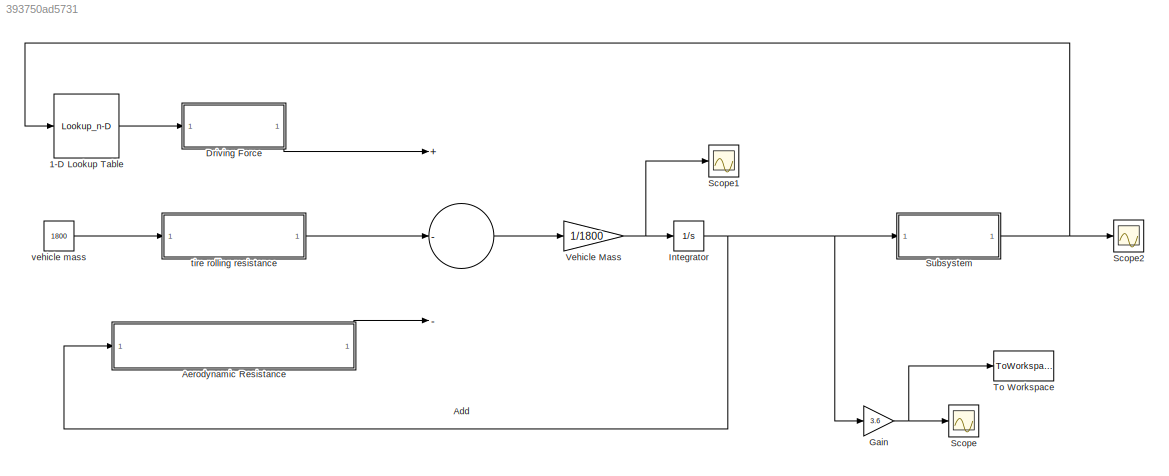
MODEL slx_393750ad5731
KIND model
CONFIG AbsTol = auto
CONFIG EnableMultiTasking = off
CONFIG FixedStep = auto
CONFIG MaxStep = auto
CONFIG MinStep = auto
CONFIG RelTol = 1e-3
CONFIG SampleTimeConstraint = Unconstrained
CONFIG Solver = VariableStepAuto
CONFIG SolverName = VariableStepAuto
CONFIG StartTime = 0.0
CONFIG StopTime = 100
BLOCK [Lookup_n-D] 1-D Lookup Table
  BreakpointsForDimension1 = EM_RPM
  InternalRulePriority = Speed
  NumberOfTableDimensions = 1
  Ports = [1, 1]
  RndMeth = Simplest
  Table = EM_torque_Nm
BLOCK [Sum] Add
  InputSameDT = off
  Inputs = +--
  OutDataTypeStr = Inherit: Inherit via internal rule
  Ports = [3, 1]
  SaturateOnIntegerOverflow = off
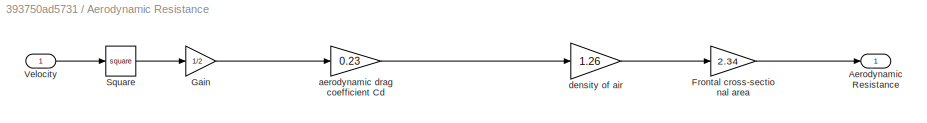
BLOCK [SubSystem] Aerodynamic Resistance 
  Ports = [1, 1]
  RequestExecContextInheritance = off
BLOCK [Outport] Aerodynamic Resistance /Aerodynamic Resistance
  IconDisplay = Port number
BLOCK [Gain] Aerodynamic Resistance /Frontal cross-sectional area
  Gain = 2.34
  OutDataTypeStr = Inherit: Inherit via internal rule
  ParamDataTypeStr = Inherit: Inherit via internal rule
  SaturateOnIntegerOverflow = off
BLOCK [Gain] Aerodynamic Resistance /Gain
  Gain = 1/2
  OutDataTypeStr = Inherit: Inherit via internal rule
  ParamDataTypeStr = Inherit: Inherit via internal rule
  SaturateOnIntegerOverflow = off
BLOCK [Math] Aerodynamic Resistance /Square
  Operator = square
  Ports = [1, 1]
BLOCK [Inport] Aerodynamic Resistance /Velocity
  IconDisplay = Port number
BLOCK [Gain] Aerodynamic Resistance /aerodynamic drag coefficient Cd
  Gain = 0.23
  OutDataTypeStr = Inherit: Inherit via internal rule
  ParamDataTypeStr = Inherit: Inherit via internal rule
  SaturateOnIntegerOverflow = off
BLOCK [Gain] Aerodynamic Resistance /density of air
  Gain = 1.26
  OutDataTypeStr = Inherit: Inherit via internal rule
  ParamDataTypeStr = Inherit: Inherit via internal rule
  SaturateOnIntegerOverflow = off
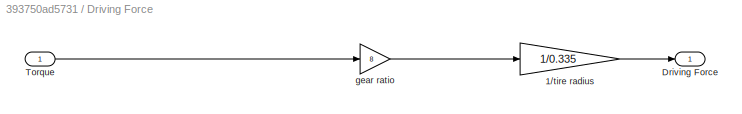
BLOCK [SubSystem] Driving Force
  Ports = [1, 1]
  RequestExecContextInheritance = off
BLOCK [Gain] Driving Force/1//tire radius
  Gain = 1/0.335
  OutDataTypeStr = Inherit: Inherit via internal rule
  ParamDataTypeStr = Inherit: Inherit via internal rule
  SaturateOnIntegerOverflow = off
BLOCK [Outport] Driving Force/Driving Force
  IconDisplay = Port number
BLOCK [Inport] Driving Force/Torque
  IconDisplay = Port number
BLOCK [Gain] Driving Force/gear ratio
  Gain = 8
  OutDataTypeStr = Inherit: Inherit via internal rule
  ParamDataTypeStr = Inherit: Inherit via internal rule
  SaturateOnIntegerOverflow = off
BLOCK [Gain] Gain
  Gain = 3.6
  OutDataTypeStr = Inherit: Inherit via internal rule
  ParamDataTypeStr = Inherit: Inherit via internal rule
  SaturateOnIntegerOverflow = off
BLOCK [Integrator] Integrator
  Ports = [1, 1]
BLOCK [Scope] Scope
  Floating = off
  NumInputPorts = 1
  Ports = [1]
  ScopeSpecificationString = Simulink.scopes.TimeScopeBlockCfg('CurrentConfiguration', extmgr.ConfigurationSet(extmgr.Configuration('Core','General UI',true),extmgr.Configuration('Core','Source UI',true),extmgr.Configuration('Sources','WiredSimulink',true,'DataLoggingVariableName','VehicleSpeed','DataLogging',true,'DataLoggingSaveFormat','StructureWithTime'),extmgr.Configuration('Visuals','Time Domain',true,'SerializedDisplay...<+1473ch>
BLOCK [Scope] Scope1
  Floating = off
  NumInputPorts = 1
  Ports = [1]
  ScopeSpecificationString = Simulink.scopes.TimeScopeBlockCfg('CurrentConfiguration', extmgr.ConfigurationSet(extmgr.Configuration('Core','General UI',true),extmgr.Configuration('Core','Source UI',true),extmgr.Configuration('Sources','WiredSimulink',true),extmgr.Configuration('Visuals','Time Domain',true,'SerializedDisplays',{struct('MinYLimReal','-0.39858','MaxYLimReal','3.58724','YLabelReal','','MinYLimMag','0.00000','MaxY...<+1365ch>
BLOCK [Scope] Scope2
  Floating = off
  NumInputPorts = 1
  Ports = [1]
  ScopeSpecificationString = Simulink.scopes.TimeScopeBlockCfg('CurrentConfiguration', extmgr.ConfigurationSet(extmgr.Configuration('Core','General UI',true),extmgr.Configuration('Core','Source UI',true),extmgr.Configuration('Sources','WiredSimulink',true,'DataLoggingVariableName','ScopeData1'),extmgr.Configuration('Visuals','Time Domain',true,'SerializedDisplays',{struct('MinYLimReal','-1846.33736','MaxYLimReal','16617.0362'...<+1421ch>
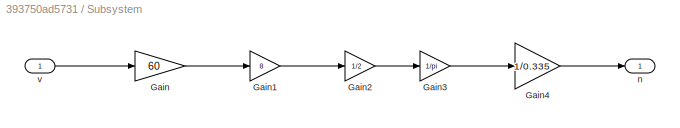
BLOCK [SubSystem] Subsystem
  Ports = [1, 1]
  RequestExecContextInheritance = off
BLOCK [Gain] Subsystem/Gain
  Gain = 60
  OutDataTypeStr = Inherit: Inherit via internal rule
  ParamDataTypeStr = Inherit: Inherit via internal rule
  SaturateOnIntegerOverflow = off
BLOCK [Gain] Subsystem/Gain1
  Gain = 8
  OutDataTypeStr = Inherit: Inherit via internal rule
  ParamDataTypeStr = Inherit: Inherit via internal rule
  SaturateOnIntegerOverflow = off
BLOCK [Gain] Subsystem/Gain2
  Gain = 1/2
  OutDataTypeStr = Inherit: Inherit via internal rule
  ParamDataTypeStr = Inherit: Inherit via internal rule
  SaturateOnIntegerOverflow = off
BLOCK [Gain] Subsystem/Gain3
  Gain = 1/pi
  OutDataTypeStr = Inherit: Inherit via internal rule
  ParamDataTypeStr = Inherit: Inherit via internal rule
  SaturateOnIntegerOverflow = off
BLOCK [Gain] Subsystem/Gain4
  Gain = 1/0.335
  OutDataTypeStr = Inherit: Inherit via internal rule
  ParamDataTypeStr = Inherit: Inherit via internal rule
  SaturateOnIntegerOverflow = off
BLOCK [Outport] Subsystem/n
  IconDisplay = Port number
BLOCK [Inport] Subsystem/v
  IconDisplay = Port number
BLOCK [ToWorkspace] To Workspace
  FixptAsFi = on
  MaxDataPoints = inf
  Ports = [1]
  SampleTime = -1
  VariableName = v_t
BLOCK [Gain] Vehicle Mass
  Gain = 1/1800
  OutDataTypeStr = Inherit: Inherit via internal rule
  ParamDataTypeStr = Inherit: Inherit via internal rule
  SaturateOnIntegerOverflow = off
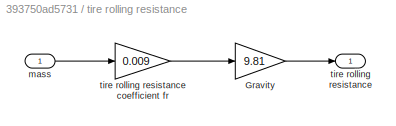
BLOCK [SubSystem] tire rolling resistance
  Ports = [1, 1]
  RequestExecContextInheritance = off
BLOCK [Gain] tire rolling resistance/Gravity
  Gain = 9.81
  OutDataTypeStr = Inherit: Inherit via internal rule
  ParamDataTypeStr = Inherit: Inherit via internal rule
  SaturateOnIntegerOverflow = off
BLOCK [Inport] tire rolling resistance/mass
  IconDisplay = Port number
BLOCK [Outport] tire rolling resistance/tire rolling resistance
  IconDisplay = Port number
BLOCK [Gain] tire rolling resistance/tire rolling resistance coefficient fr
  Gain = 0.009
  OutDataTypeStr = Inherit: Inherit via internal rule
  ParamDataTypeStr = Inherit: Inherit via internal rule
  SaturateOnIntegerOverflow = off
BLOCK [Constant] vehicle mass
  Value = 1800
LINE 1-D Lookup Table:1 -> Driving Force:1
LINE Add:1 -> Vehicle Mass:1
LINE Aerodynamic Resistance /Frontal cross-sectional area:1 -> Aerodynamic Resistance /Aerodynamic Resistance:1
LINE Aerodynamic Resistance /Gain:1 -> Aerodynamic Resistance /aerodynamic drag coefficient Cd:1
LINE Aerodynamic Resistance /Square:1 -> Aerodynamic Resistance /Gain:1
LINE Aerodynamic Resistance /Velocity:1 -> Aerodynamic Resistance /Square:1
LINE Aerodynamic Resistance /aerodynamic drag coefficient Cd:1 -> Aerodynamic Resistance /density of air:1
LINE Aerodynamic Resistance /density of air:1 -> Aerodynamic Resistance /Frontal cross-sectional area:1
LINE Aerodynamic Resistance :1 -> Add:3
LINE Driving Force/1//tire radius:1 -> Driving Force/Driving Force:1
LINE Driving Force/Torque:1 -> Driving Force/gear ratio:1
LINE Driving Force/gear ratio:1 -> Driving Force/1//tire radius:1
LINE Driving Force:1 -> Add:1
NET Gain:1 -> Scope:1, To Workspace:1
NET Integrator:1 -> Aerodynamic Resistance :1, Gain:1, Subsystem:1
LINE Subsystem/Gain1:1 -> Subsystem/Gain2:1
LINE Subsystem/Gain2:1 -> Subsystem/Gain3:1
LINE Subsystem/Gain3:1 -> Subsystem/Gain4:1
LINE Subsystem/Gain4:1 -> Subsystem/n:1
LINE Subsystem/Gain:1 -> Subsystem/Gain1:1
LINE Subsystem/v:1 -> Subsystem/Gain:1
NET Subsystem:1 -> 1-D Lookup Table:1, Scope2:1
NET Vehicle Mass:1 -> Integrator:1, Scope1:1
LINE tire rolling resistance/Gravity:1 -> tire rolling resistance/tire rolling resistance:1
LINE tire rolling resistance/mass:1 -> tire rolling resistance/tire rolling resistance coefficient fr:1
LINE tire rolling resistance/tire rolling resistance coefficient fr:1 -> tire rolling resistance/Gravity:1
LINE tire rolling resistance:1 -> Add:2
LINE vehicle mass:1 -> tire rolling resistance:1
note: NET lines group one-source signal fan-out (src -> all destinations, sorted); 1:1 wires keep LINE
